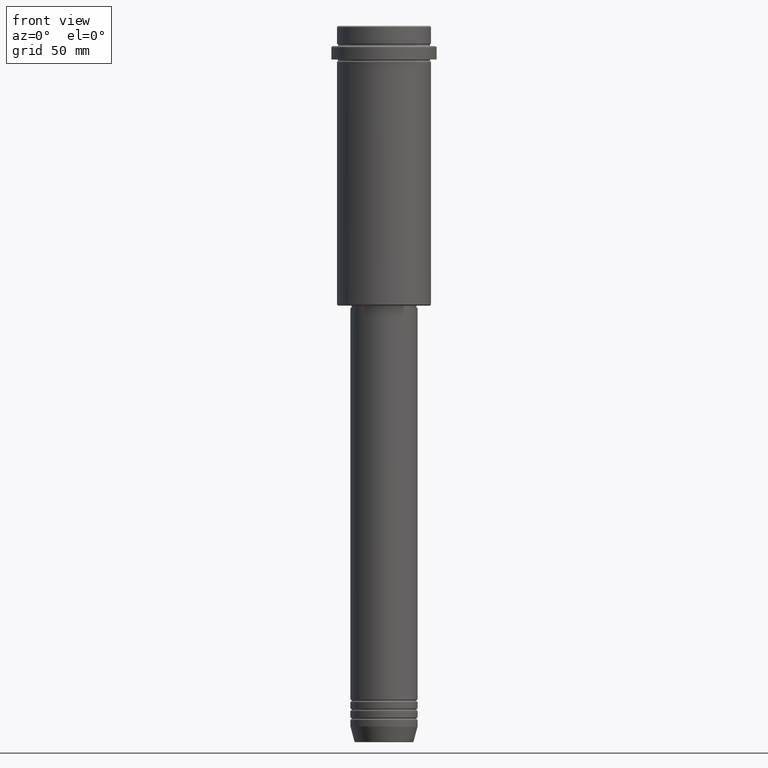
[diagram: clean part render]
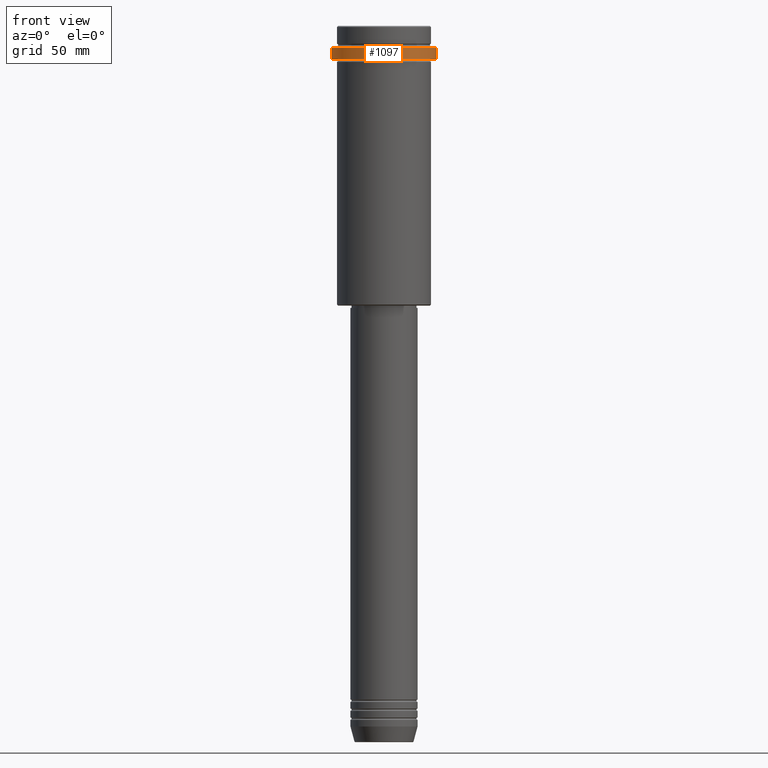
[diagram: same view with one face highlighted and labeled with its STEP entity id]
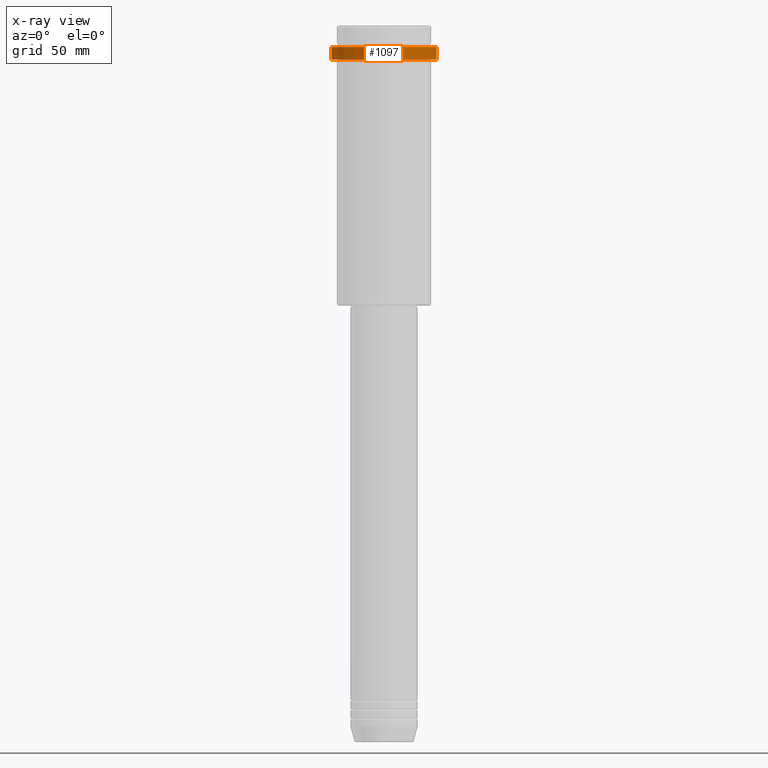
[diagram: x-ray of the same camera — body ghosted, the highlighted face saturated]
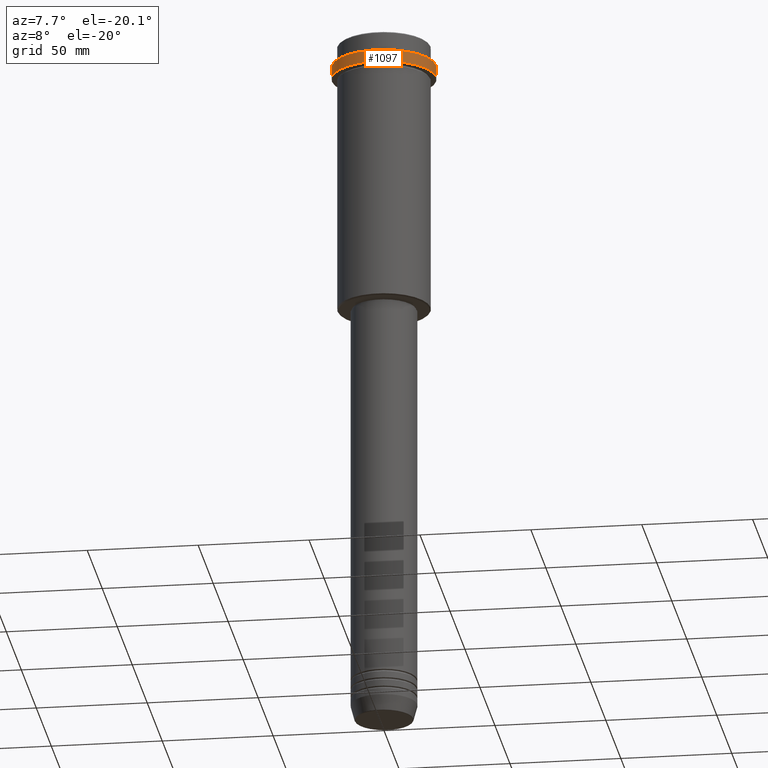
[diagram: same view with one face highlighted and labeled with its STEP entity id]
A machine part, front view. The second image highlights one B-rep face of the part: STEP entity #1097.
The next image is the same camera in x-ray: the body ghosted, the highlighted face saturated — about 0% of this face is hidden behind the body in this view.
A second angle (auxiliary view) of the same face is appended — the face is thin or edge-on in the first view.
In plain terms, the highlighted cylindrical surface (partial cylindrical patch) has radius 23.5 mm, axis along (-0, -0, 1).
Its self-contained STEP definition (entity closure, byte-faithful):
#91 = CARTESIAN_POINT ( 'NONE',  ( 0.000000000000000000, 0.000000000000000000, -15.00000000000000178 ) ) ;
#94 = VECTOR ( 'NONE', #603, 1000.000000000000000 ) ;
#139 = CARTESIAN_POINT ( 'NONE',  ( 23.50000000000000000, 0.000000000000000000, 0.000000000000000000 ) ) ;
#192 = ORIENTED_EDGE ( 'NONE', *, *, #466, .T. ) ;
#225 = DIRECTION ( 'NONE',  ( -0.000000000000000000, -0.000000000000000000, 1.000000000000000000 ) ) ;
#230 = AXIS2_PLACEMENT_3D ( 'NONE', #91, #732, #960 ) ;
#306 = CIRCLE ( 'NONE', #540, 23.50000000000000000 ) ;
#383 = ORIENTED_EDGE ( 'NONE', *, *, #1282, .T. ) ;
#390 = VERTEX_POINT ( 'NONE', #871 ) ;
#466 = EDGE_CURVE ( 'NONE', #390, #1272, #1121, .T. ) ;
#540 = AXIS2_PLACEMENT_3D ( 'NONE', #583, #573, #689 ) ;
#573 = DIRECTION ( 'NONE',  ( 0.000000000000000000, 0.000000000000000000, -1.000000000000000000 ) ) ;
#583 = CARTESIAN_POINT ( 'NONE',  ( 0.000000000000000000, 0.000000000000000000, -9.499999999999973355 ) ) ;
#603 = DIRECTION ( 'NONE',  ( -0.000000000000000000, -0.000000000000000000, 1.000000000000000000 ) ) ;
#642 = EDGE_CURVE ( 'NONE', #796, #718, #1025, .T. ) ;
#646 = ORIENTED_EDGE ( 'NONE', *, *, #642, .F. ) ;
#664 = FACE_OUTER_BOUND ( 'NONE', #1327, .T. ) ;
#689 = DIRECTION ( 'NONE',  ( 1.000000000000000000, 0.000000000000000000, 0.000000000000000000 ) ) ;
#709 = CARTESIAN_POINT ( 'NONE',  ( 23.50000000000000000, 0.000000000000000000, -9.499999999999973355 ) ) ;
#718 = VERTEX_POINT ( 'NONE', #1033 ) ;
#732 = DIRECTION ( 'NONE',  ( -0.000000000000000000, -0.000000000000000000, 1.000000000000000000 ) ) ;
#796 = VERTEX_POINT ( 'NONE', #1141 ) ;
#867 = EDGE_CURVE ( 'NONE', #796, #390, #1103, .T. ) ;
#870 = CYLINDRICAL_SURFACE ( 'NONE', #1309, 23.50000000000000000 ) ;
#871 = CARTESIAN_POINT ( 'NONE',  ( 23.50000000000000355, 0.000000000000000000, -15.00000000000000178 ) ) ;
#960 = DIRECTION ( 'NONE',  ( 1.000000000000000000, 0.000000000000000000, 0.000000000000000000 ) ) ;
#1025 = LINE ( 'NONE', #1368, #94 ) ;
#1028 = VECTOR ( 'NONE', #1085, 1000.000000000000000 ) ;
#1033 = CARTESIAN_POINT ( 'NONE',  ( -23.50000000000000000, 2.877919977996280320E-15, -9.499999999999973355 ) ) ;
#1085 = DIRECTION ( 'NONE',  ( -0.000000000000000000, -0.000000000000000000, 1.000000000000000000 ) ) ;
#1097 = ADVANCED_FACE ( 'NONE', ( #664 ), #870, .T. ) ;
#1098 = ORIENTED_EDGE ( 'NONE', *, *, #867, .T. ) ;
#1103 = CIRCLE ( 'NONE', #230, 23.50000000000000355 ) ;
#1121 = LINE ( 'NONE', #139, #1028 ) ;
#1141 = CARTESIAN_POINT ( 'NONE',  ( -23.50000000000000711, 2.877919977996281109E-15, -15.00000000000000178 ) ) ;
#1219 = DIRECTION ( 'NONE',  ( 1.000000000000000000, 0.000000000000000000, 0.000000000000000000 ) ) ;
#1272 = VERTEX_POINT ( 'NONE', #709 ) ;
#1282 = EDGE_CURVE ( 'NONE', #1272, #718, #306, .T. ) ;
#1309 = AXIS2_PLACEMENT_3D ( 'NONE', #1323, #225, #1219 ) ;
#1323 = CARTESIAN_POINT ( 'NONE',  ( 0.000000000000000000, 0.000000000000000000, 0.000000000000000000 ) ) ;
#1327 = EDGE_LOOP ( 'NONE', ( #646, #1098, #192, #383 ) ) ;
#1368 = CARTESIAN_POINT ( 'NONE',  ( -23.50000000000000000, 2.877919977996280320E-15, 0.000000000000000000 ) ) ;